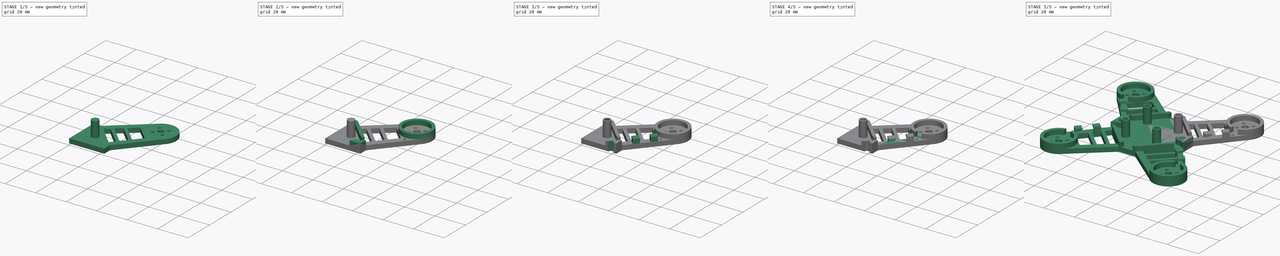
[diagram: build sequence overview — one tinted view per stage of 5, left to right]
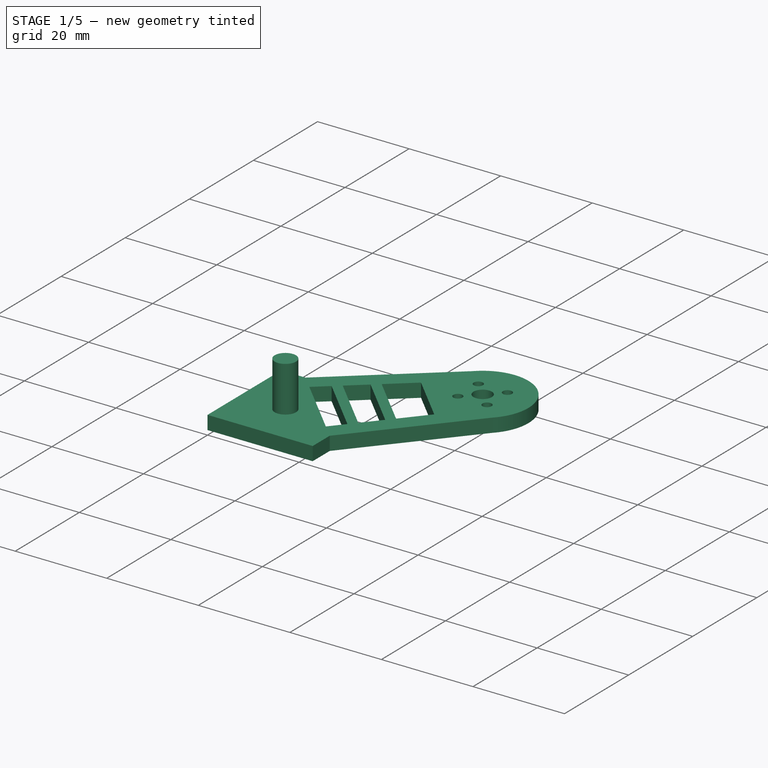
[diagram: stage 1 of 5 — iso view after this stage's code; geometry added in this stage tinted green]
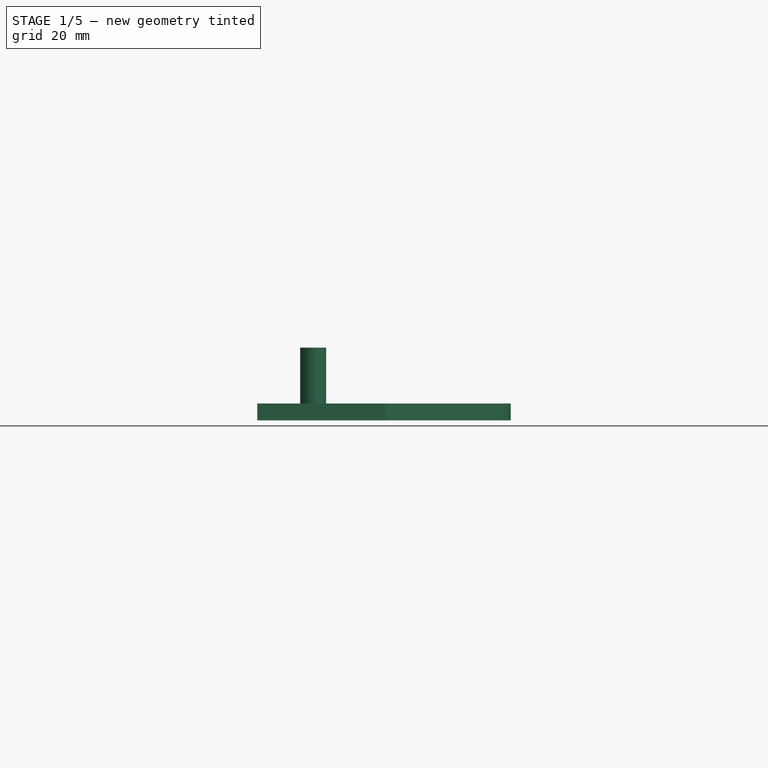
[diagram: stage 1 of 5 — front view after this stage's code; geometry added in this stage tinted green]
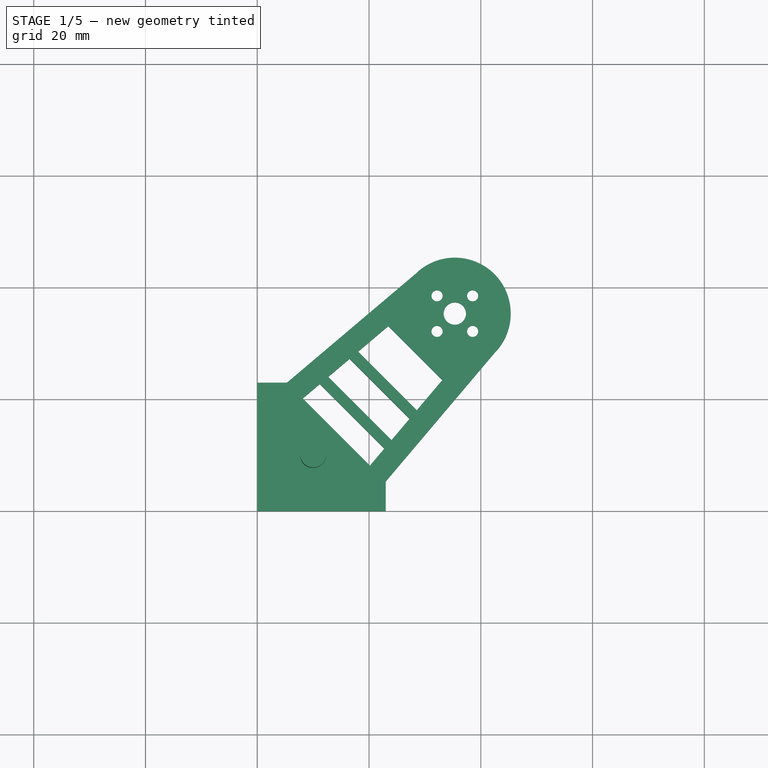
[diagram: stage 1 of 5 — top view after this stage's code; geometry added in this stage tinted green]
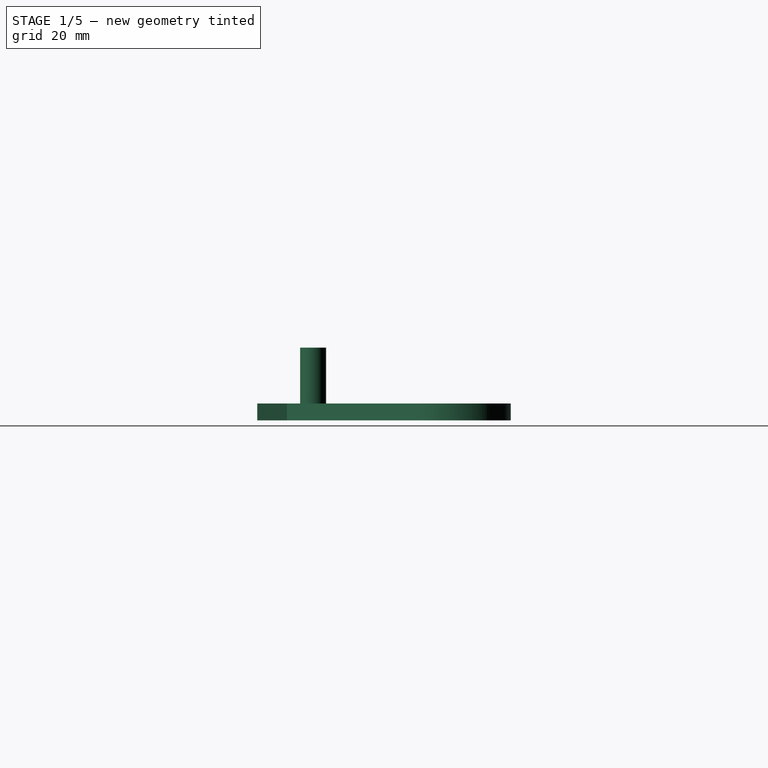
[diagram: stage 1 of 5 — right view after this stage's code; geometry added in this stage tinted green]
FCSTD DOCUMENT  (FreeCAD 0.16R6706 (Git))
Label: darkstar_main_mirrored
License: All rights reserved
LicenseURL: http://en.wikipedia.org/wiki/All_rights_reserved
objects: Sketcher::SketchObject×15, PartDesign::Pocket×9, PartDesign::Pad×5, Part::Mirroring×2, Part::MultiFuse×2
note: 47 computed .brp shape members not serialized (recipe doc carries the construction recipe); baked Part::Feature solids carry a one-line shape summary decoded from their .brp

FEATURE [Sketcher::SketchObject] Sketch  label="template"
  sketch-geometry (4):
    g0: LineSegment [constr] StartX=0 StartY=0 StartZ=0 EndX=35.3553 EndY=35.3553 EndZ=0
    g1: LineSegment [constr] StartX=5.3033 StartY=22.981 StartZ=0 EndX=22.981 EndY=5.3033 EndZ=0
    g2: GeomPoint [constr] X=14.1421 Y=14.1421 Z=0
    g3: LineSegment [constr] StartX=28.2843 StartY=42.4264 StartZ=0 EndX=42.4264 EndY=28.2843 EndZ=0
  constraints (11):
    c: Coincident(g0,g-1)
    c: Distance(g0) = 50
    c: Angle(g-1,g0) = 0.785398
    c: Symmetric(g1,g1,g0)
    c: Distance(g1) = 25
    c: PointOnObject(g2,g0)
    c: Distance(g-1,g2) = 20
    c: PointOnObject(g2,g1)
    c: Symmetric(g3,g3,g0)
    c: PointOnObject(g0,g3)
    c: Distance(g3) = 20
FEATURE [Sketcher::SketchObject] Sketch001  label="main_plate"
  sketch-geometry (11):
    g0: LineSegment [constr] StartX=0 StartY=0 StartZ=0 EndX=35.3553 EndY=35.3553 EndZ=0
    g1: LineSegment [constr] StartX=5.3033 StartY=22.981 StartZ=0 EndX=22.981 EndY=5.3033 EndZ=0
    g2: GeomPoint [constr] X=14.1421 Y=14.1421 Z=0
    g3: LineSegment [constr] StartX=28.2843 StartY=42.4264 StartZ=0 EndX=42.4264 EndY=28.2843 EndZ=0
    g4: LineSegment StartX=28.2843 StartY=42.4264 StartZ=0 EndX=5.3033 EndY=22.981 EndZ=0
    g5: LineSegment StartX=5.3033 StartY=22.981 StartZ=0 EndX=0 EndY=22.981 EndZ=0
    g6: LineSegment StartX=0 StartY=22.981 StartZ=0 EndX=0 EndY=0 EndZ=0
    g7: LineSegment StartX=0 StartY=0 StartZ=0 EndX=22.981 EndY=0 EndZ=0
    g8: LineSegment StartX=22.981 StartY=0 StartZ=0 EndX=22.981 EndY=5.3033 EndZ=0
    g9: LineSegment StartX=22.981 StartY=5.3033 StartZ=0 EndX=42.4264 EndY=28.2843 EndZ=0
    g10: ArcOfCircle CenterX=35.3553 CenterY=35.3553 CenterZ=0 NormalX=0 NormalY=0 NormalZ=1 Radius=10 StartAngle=5.49779 EndAngle=8.63938
  constraints (28):
    c: Coincident(g0,g-1)
    c: Distance(g0) = 50
    c: Angle(g-1,g0) = 0.785398
    c: Symmetric(g1,g1,g0)
    c: Distance(g1) = 25
    c: PointOnObject(g2,g0)
    c: Distance(g-1,g2) = 20
    c: PointOnObject(g2,g1)
    c: Symmetric(g3,g3,g0)
    c: PointOnObject(g0,g3)
    c: Distance(g3) = 20
    c: Coincident(g3,g4)
    c: Coincident(g4,g1)
    c: Coincident(g4,g5)
    c: PointOnObject(g5,g-2)
    c: Coincident(g5,g6)
    c: Coincident(g6,g-1)
    c: Coincident(g6,g7)
    c: PointOnObject(g7,g-1)
    c: Coincident(g7,g8)
    c: Coincident(g8,g1)
    c: Vertical(g8)
    c: Coincident(g8,g9)
    c: Coincident(g9,g3)
    c: Horizontal(g5)
    c: Coincident(g10,g0)
    c: Coincident(g10,g3)
    c: Coincident(g10,g3)
FEATURE [PartDesign::Pad] Pad
  Length = 3
  Length2 = 100
  Sketch = -> Sketch001
  Type = 0
FEATURE [Sketcher::SketchObject] Sketch002  label="motor_holes"
  Placement = pos=(0,0,3) rot=(0,0,1;0rad)
  Support = -> Pad [Face9]
  sketch-geometry (14):
    g0: LineSegment [constr] StartX=0 StartY=0 StartZ=0 EndX=35.3553 EndY=35.3553 EndZ=0
    g1: LineSegment [constr] StartX=5.3033 StartY=22.981 StartZ=0 EndX=22.981 EndY=5.3033 EndZ=0
    g2: GeomPoint [constr] X=14.1421 Y=14.1421 Z=0
    g3: LineSegment [constr] StartX=28.2843 StartY=42.4264 StartZ=0 EndX=42.4264 EndY=28.2843 EndZ=0
    g4: GeomPoint [constr] X=32.1734 Y=32.1734 Z=0
    g5: GeomPoint [constr] X=38.5373 Y=32.1734 Z=0
    g6: GeomPoint [constr] X=38.5373 Y=38.5373 Z=0
    g7: GeomPoint [constr] X=32.1734 Y=38.5373 Z=0
    g8: Circle [constr] CenterX=35.3553 CenterY=35.3553 CenterZ=0 NormalX=0 NormalY=0 NormalZ=1 Radius=4.5
    g9: Circle CenterX=35.3553 CenterY=35.3553 CenterZ=0 NormalX=0 NormalY=0 NormalZ=1 Radius=2
    g10: Circle CenterX=38.5373 CenterY=38.5373 CenterZ=0 NormalX=0 NormalY=0 NormalZ=1 Radius=1
    g11: Circle CenterX=32.1734 CenterY=38.5373 CenterZ=0 NormalX=0 NormalY=0 NormalZ=1 Radius=1
    g12: Circle CenterX=32.1734 CenterY=32.1734 CenterZ=0 NormalX=0 NormalY=0 NormalZ=1 Radius=1
    g13: Circle CenterX=38.5373 CenterY=32.1734 CenterZ=0 NormalX=0 NormalY=0 NormalZ=1 Radius=1
  constraints (31):
    c: Coincident(g0,g-1)
    c: Distance(g0) = 50
    c: Angle(g-1,g0) = 0.785398
    c: Symmetric(g1,g1,g0)
    c: Distance(g1) = 25
    c: PointOnObject(g2,g0)
    c: Distance(g-1,g2) = 20
    c: PointOnObject(g2,g1)
    c: Symmetric(g3,g3,g0)
    c: PointOnObject(g0,g3)
    c: Distance(g3) = 20
    c: PointOnObject(g4,g0)
    c: PointOnObject(g5,g3)
    c: PointOnObject(g7,g3)
    c: Coincident(g8,g0)
    c: PointOnObject(g7,g8)
    c: PointOnObject(g5,g8)
    c: PointOnObject(g4,g8)
    c: PointOnObject(g6,g8)
    c: Symmetric(g6,g4,g0)
    c: Distance(g5,g7) = 9
    c: Coincident(g9,g0)
    c: Coincident(g10,g6)
    c: Coincident(g11,g7)
    c: Coincident(g12,g4)
    c: Coincident(g13,g5)
    c: Radius(g10) = 1
    c: Equal(g10,g11)
    c: Equal(g11,g12)
    c: Equal(g12,g13)
    c: Radius(g9) = 2
FEATURE [PartDesign::Pocket] Pocket
  Length = 3
  Sketch = -> Sketch002
  Type = 0
FEATURE [Sketcher::SketchObject] Sketch003  label="fan_clearance"
  Placement = pos=(0,0,3) rot=(0,0,1;0rad)
  Support = -> Pocket [Face5]
  sketch-geometry (18):
    g0: LineSegment [constr] StartX=0 StartY=0 StartZ=0 EndX=35.3553 EndY=35.3553 EndZ=0
    g1: LineSegment [constr] StartX=5.3033 StartY=22.981 StartZ=0 EndX=22.981 EndY=5.3033 EndZ=0
    g2: GeomPoint [constr] X=14.1421 Y=14.1421 Z=0
    g3: LineSegment [constr] StartX=28.2843 StartY=42.4264 StartZ=0 EndX=42.4264 EndY=28.2843 EndZ=0
    g4: LineSegment [constr] StartX=20.1525 StartY=8.13173 StartZ=0 EndX=39.598 EndY=31.1127 EndZ=0
    g5: LineSegment StartX=20.1525 StartY=8.13173 StartZ=0 EndX=8.13173 EndY=20.1525 EndZ=0
    g6: LineSegment StartX=8.13173 StartY=20.1525 StartZ=0 EndX=11.1853 EndY=22.7363 EndZ=0
    g7: LineSegment StartX=11.1853 StartY=22.7363 StartZ=0 EndX=22.7363 EndY=11.1853 EndZ=0
    g8: LineSegment StartX=22.7363 StartY=11.1853 StartZ=0 EndX=20.1525 EndY=8.13173 EndZ=0
    g9: LineSegment StartX=24.0282 StartY=12.712 StartZ=0 EndX=12.712 EndY=24.0282 EndZ=0
    g10: LineSegment StartX=12.712 StartY=24.0282 StartZ=0 EndX=16.529 EndY=27.2579 EndZ=0
    g11: LineSegment StartX=16.529 StartY=27.2579 StartZ=0 EndX=27.2579 EndY=16.529 EndZ=0
    g12: LineSegment StartX=27.2579 StartY=16.529 StartZ=0 EndX=24.0282 EndY=12.712 EndZ=0
    g13: LineSegment StartX=28.5498 StartY=18.0557 StartZ=0 EndX=18.0557 EndY=28.5498 EndZ=0
    g14: LineSegment StartX=18.0557 StartY=28.5498 StartZ=0 EndX=23.4524 EndY=33.1162 EndZ=0
    g15: LineSegment StartX=23.4524 StartY=33.1162 StartZ=0 EndX=33.1162 EndY=23.4524 EndZ=0
    g16: LineSegment StartX=33.1162 StartY=23.4524 StartZ=0 EndX=28.5498 EndY=18.0557 EndZ=0
    g17: ArcOfCircle [constr] CenterX=35.3553 CenterY=35.3553 CenterZ=0 NormalX=0 NormalY=0 NormalZ=1 Radius=10 StartAngle=2.35619 EndAngle=5.49779
  constraints (47):
    c: Coincident(g0,g-1)
    c: Distance(g0) = 50
    c: Angle(g-1,g0) = 0.785398
    c: Symmetric(g1,g1,g0)
    c: Distance(g1) = 25
    c: PointOnObject(g2,g0)
    c: Distance(g-1,g2) = 20
    c: PointOnObject(g2,g1)
    c: Symmetric(g3,g3,g0)
    c: PointOnObject(g0,g3)
    c: Distance(g3) = 20
    c: PointOnObject(g4,g1)
    c: PointOnObject(g4,g3)
    c: Distance(g4,g1) = 4
    c: Distance(g3,g4) = 4
    c: Coincident(g5,g4)
    c: Coincident(g6,g5)
    c: Coincident(g7,g6)
    c: PointOnObject(g7,g4)
    c: Coincident(g8,g7)
    c: Coincident(g8,g4)
    c: Symmetric(g4,g5,g2)
    c: Symmetric(g7,g6,g0)
    c: Distance(g4,g7) = 4
    c: PointOnObject(g9,g4)
    c: Coincident(g10,g9)
    c: Coincident(g11,g10)
    c: PointOnObject(g11,g4)
    c: Coincident(g12,g11)
    c: Coincident(g12,g9)
    c: Distance(g7,g9) = 2
    c: Distance(g9,g11) = 5
    c: Symmetric(g9,g9,g0)
    c: Symmetric(g11,g10,g0)
    c: PointOnObject(g13,g4)
    c: Coincident(g14,g13)
    c: Coincident(g15,g14)
    c: PointOnObject(g15,g4)
    c: Coincident(g16,g15)
    c: Coincident(g16,g13)
    c: Coincident(g17,g0)
    c: Coincident(g17,g3)
    c: Coincident(g17,g3)
    c: Symmetric(g13,g13,g0)
    c: Distance(g13,g11) = 2
    c: Symmetric(g15,g14,g0)
    c: Tangent(g15,g17)
FEATURE [PartDesign::Pocket] Pocket001
  Length = 3
  Sketch = -> Sketch003
  Type = 0
FEATURE [Sketcher::SketchObject] Sketch005  label="pcb_riser"
  Placement = pos=(0,0,3) rot=(0,0,1;0rad)
  Support = -> Pocket001 [Face5]
  sketch-geometry (7):
    g0: LineSegment [constr] StartX=0 StartY=0 StartZ=0 EndX=35.3553 EndY=35.3553 EndZ=0
    g1: LineSegment [constr] StartX=5.3033 StartY=22.981 StartZ=0 EndX=22.981 EndY=5.3033 EndZ=0
    g2: GeomPoint [constr] X=14.1421 Y=14.1421 Z=0
    g3: LineSegment [constr] StartX=28.2843 StartY=42.4264 StartZ=0 EndX=42.4264 EndY=28.2843 EndZ=0
    g4: GeomPoint [constr] X=10 Y=10 Z=0
    g5: LineSegment [constr] StartX=10 StartY=0 StartZ=0 EndX=10 EndY=10 EndZ=0
    g6: Circle CenterX=10 CenterY=10 CenterZ=0 NormalX=0 NormalY=0 NormalZ=1 Radius=2.33
  constraints (18):
    c: Coincident(g0,g-1)
    c: Distance(g0) = 50
    c: Angle(g-1,g0) = 0.785398
    c: Symmetric(g1,g1,g0)
    c: Distance(g1) = 25
    c: PointOnObject(g2,g0)
    c: Distance(g-1,g2) = 20
    c: PointOnObject(g2,g1)
    c: Symmetric(g3,g3,g0)
    c: PointOnObject(g0,g3)
    c: Distance(g3) = 20
    c: PointOnObject(g4,g0)
    c: PointOnObject(g5,g-1)
    c: Coincident(g5,g4)
    c: Vertical(g5)
    c: Distance(g5) = 10
    c: Coincident(g6,g4)
    c: Radius(g6) = 2.33
FEATURE [PartDesign::Pad] Pad001
  Length = 10
  Length2 = 100
  Sketch = -> Sketch005
  Type = 0
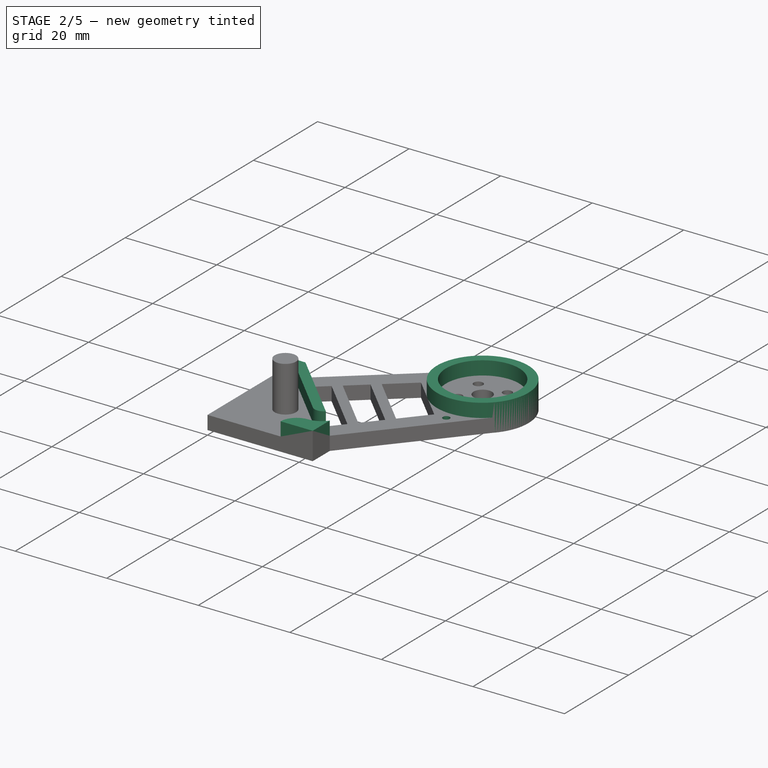
[diagram: stage 2 of 5 — iso view after this stage's code; geometry added in this stage tinted green]
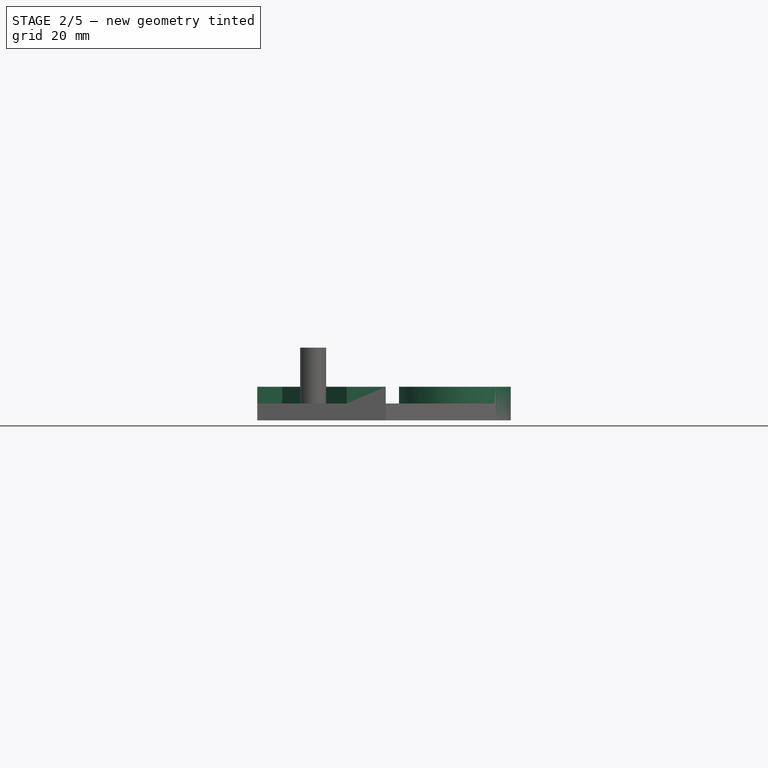
[diagram: stage 2 of 5 — front view after this stage's code; geometry added in this stage tinted green]
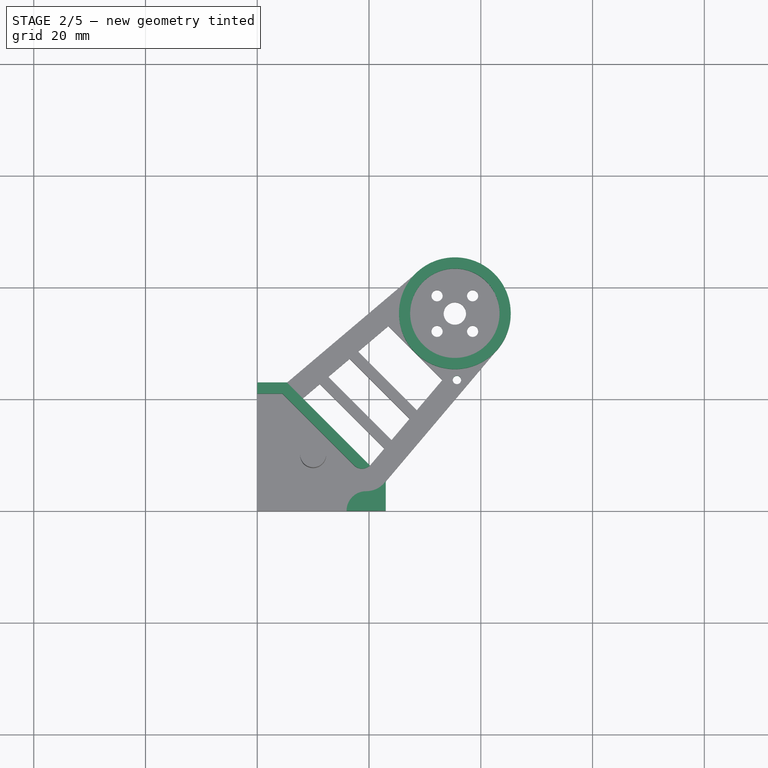
[diagram: stage 2 of 5 — top view after this stage's code; geometry added in this stage tinted green]
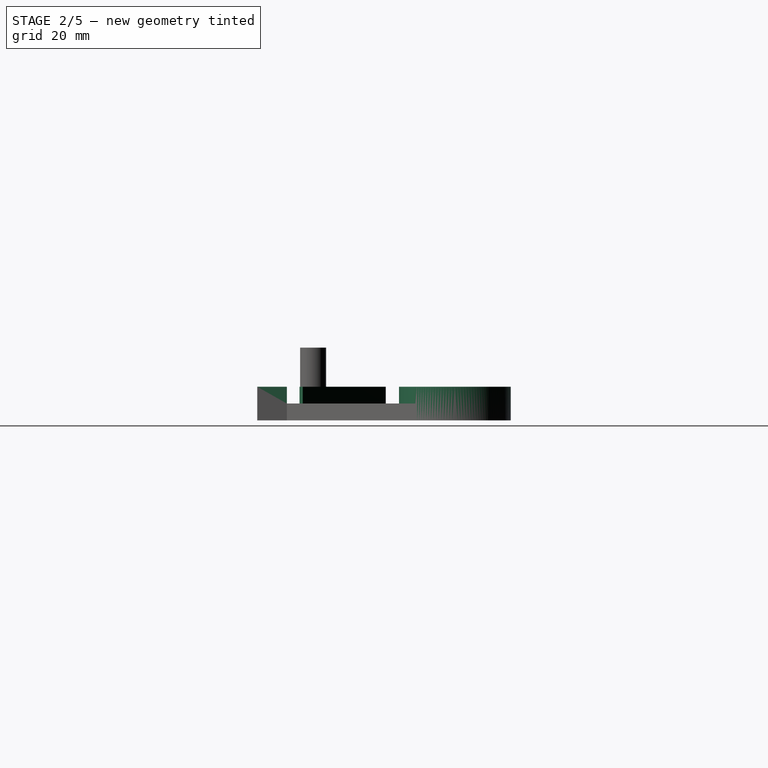
[diagram: stage 2 of 5 — right view after this stage's code; geometry added in this stage tinted green]
FEATURE [Sketcher::SketchObject] Sketch004  label="frame_lip"
  Placement = pos=(0,0,3) rot=(0,0,1;0rad)
  Support = -> Pad001 [Face5]
  sketch-geometry (19):
    g0: LineSegment [constr] StartX=0 StartY=0 StartZ=0 EndX=35.3553 EndY=35.3553 EndZ=0
    g1: LineSegment [constr] StartX=5.3033 StartY=22.981 StartZ=0 EndX=22.981 EndY=5.3033 EndZ=0
    g2: GeomPoint [constr] X=14.1421 Y=14.1421 Z=0
    g3: LineSegment [constr] StartX=28.2843 StartY=42.4264 StartZ=0 EndX=42.4264 EndY=28.2843 EndZ=0
    g4: LineSegment StartX=5.3033 StartY=22.981 StartZ=0 EndX=20.1525 EndY=8.13173 EndZ=0
    g5: LineSegment StartX=5.3033 StartY=22.981 StartZ=0 EndX=0 EndY=22.981 EndZ=0
    g6: LineSegment StartX=0 StartY=22.981 StartZ=0 EndX=0 EndY=20.981 EndZ=0
    g7: LineSegment StartX=0 StartY=20.981 StartZ=0 EndX=4.47487 EndY=20.981 EndZ=0
    g8: LineSegment StartX=17.3241 StartY=8.13173 StartZ=0 EndX=4.47487 EndY=20.981 EndZ=0
    g9: LineSegment [constr] StartX=18.7383 StartY=9.54594 StartZ=0 EndX=17.3241 EndY=8.13173 EndZ=0
    g10: ArcOfCircle CenterX=18.7383 CenterY=9.54594 CenterZ=0 NormalX=0 NormalY=0 NormalZ=1 Radius=2 StartAngle=3.92699 EndAngle=5.49779
    g11: LineSegment StartX=22.981 StartY=5.3033 StartZ=0 EndX=22.981 EndY=0 EndZ=0
    g12: LineSegment StartX=22.981 StartY=0 StartZ=0 EndX=20.981 EndY=0 EndZ=0
    g13: LineSegment StartX=20.981 StartY=0 StartZ=0 EndX=17.981 EndY=0 EndZ=0
    g14: LineSegment StartX=17.981 StartY=0 StartZ=0 EndX=15.981 EndY=-1e-12 EndZ=0
    g15: ArcOfCircle [constr] CenterX=19.481 CenterY=0 CenterZ=0 NormalX=0 NormalY=0 NormalZ=1 Radius=1.5 StartAngle=0 EndAngle=3.14159
    g16: ArcOfCircle CenterX=19.481 CenterY=0 CenterZ=0 NormalX=0 NormalY=0 NormalZ=1 Radius=3.5 StartAngle=1.5708 EndAngle=3.14159
    g17: LineSegment [constr] StartX=19.481 StartY=0 StartZ=0 EndX=19.481 EndY=3.5 EndZ=0
    g18: ArcOfCircle CenterX=19.481 CenterY=7.79817 CenterZ=0 NormalX=0 NormalY=0 NormalZ=1 Radius=4.29817 StartAngle=4.71239 EndAngle=5.66391
  constraints (54):
    c: Coincident(g0,g-1)
    c: Distance(g0) = 50
    c: Angle(g-1,g0) = 0.785398
    c: Symmetric(g1,g1,g0)
    c: Distance(g1) = 25
    c: PointOnObject(g2,g0)
    c: Distance(g-1,g2) = 20
    c: PointOnObject(g2,g1)
    c: Symmetric(g3,g3,g0)
    c: PointOnObject(g0,g3)
    c: Distance(g3) = 20
    c: Coincident(g4,g1)
    c: PointOnObject(g4,g1)
    c: Distance(g4,g1) = 4
    c: Coincident(g5,g1)
    c: PointOnObject(g5,g-2)
    c: Horizontal(g5)
    c: Coincident(g6,g5)
    c: PointOnObject(g6,g-2)
    c: Distance(g6) = 2
    c: Coincident(g7,g6)
    c: Parallel(g7,g5)
    c: Coincident(g8,g7)
    c: Parallel(g4,g8)
    c: PointOnObject(g9,g1)
    c: Coincident(g9,g8)
    c: Perpendicular(g1,g9)
    c: Equal(g9,g6)
    c: Coincident(g10,g8)
    c: Coincident(g10,g4)
    c: Coincident(g10,g9)
    c: Coincident(g11,g1)
    c: PointOnObject(g11,g-1)
    c: Vertical(g11)
    c: Coincident(g12,g11)
    c: Coincident(g13,g12)
    c: Coincident(g14,g13)
    c: Equal(g12,g14)
    c: Equal(g14,g6)
    c: PointOnObject(g15,g13)
    c: Coincident(g15,g13)
    c: Coincident(g15,g12)
    c: PointOnObject(g12,g-1)
    c: PointOnObject(g13,g-1)
    c: PointOnObject(g14,g-1)
    c: Distance(g13,g12) = 3
    c: Coincident(g16,g15)
    c: Coincident(g16,g14)
    c: Coincident(g17,g15)
    c: Coincident(g17,g16)
    c: Symmetric(g12,g13,g17)
    c: Coincident(g18,g16)
    c: Coincident(g18,g1)
    c: Tangent(g18,g16)
FEATURE [PartDesign::Pad] Pad002
  Length = 3
  Length2 = 100
  Sketch = -> Sketch004
  Type = 0
FEATURE [Sketcher::SketchObject] Sketch009  label="motor_sleeve"
  Placement = pos=(0,0,3) rot=(0,0,1;0rad)
  Support = -> Pad002 [Face5]
  sketch-geometry (7):
    g0: LineSegment [constr] StartX=0 StartY=0 StartZ=0 EndX=35.3553 EndY=35.3553 EndZ=0
    g1: LineSegment [constr] StartX=5.3033 StartY=22.981 StartZ=0 EndX=22.981 EndY=5.3033 EndZ=0
    g2: GeomPoint [constr] X=14.1421 Y=14.1421 Z=0
    g3: LineSegment [constr] StartX=28.2843 StartY=42.4264 StartZ=0 EndX=42.4264 EndY=28.2843 EndZ=0
    g4: Circle CenterX=35.3553 CenterY=35.3553 CenterZ=0 NormalX=0 NormalY=0 NormalZ=1 Radius=10
    g5: Circle CenterX=35.3553 CenterY=35.3553 CenterZ=0 NormalX=0 NormalY=0 NormalZ=1 Radius=8
    g6: GeomPoint [constr] X=41.0122 Y=29.6985 Z=0
  constraints (17):
    c: Coincident(g0,g-1)
    c: Distance(g0) = 50
    c: Angle(g-1,g0) = 0.785398
    c: Symmetric(g1,g1,g0)
    c: Distance(g1) = 25
    c: PointOnObject(g2,g0)
    c: Distance(g-1,g2) = 20
    c: PointOnObject(g2,g1)
    c: Symmetric(g3,g3,g0)
    c: PointOnObject(g0,g3)
    c: Distance(g3) = 20
    c: Coincident(g4,g0)
    c: PointOnObject(g3,g4)
    c: Coincident(g5,g0)
    c: PointOnObject(g6,g3)
    c: Distance(g6,g3) = 2
    c: PointOnObject(g6,g5)
FEATURE [PartDesign::Pad] Pad003
  Length = 3
  Length2 = 100
  Sketch = -> Sketch009
  Type = 0
FEATURE [Sketcher::SketchObject] Sketch011  label="rc_antenna_hole"
  Placement = pos=(0,0,3) rot=(0,0,1;0rad)
  Support = -> Pad003 [Face4]
  sketch-geometry (7):
    g0: LineSegment [constr] StartX=0 StartY=0 StartZ=0 EndX=35.3553 EndY=35.3553 EndZ=0
    g1: LineSegment [constr] StartX=5.3033 StartY=22.981 StartZ=0 EndX=22.981 EndY=5.3033 EndZ=0
    g2: GeomPoint [constr] X=14.1421 Y=14.1421 Z=0
    g3: LineSegment [constr] StartX=28.2843 StartY=42.4264 StartZ=0 EndX=42.4264 EndY=28.2843 EndZ=0
    g4: LineSegment [constr] StartX=42.4264 StartY=28.2843 StartZ=0 EndX=22.981 EndY=5.3033 EndZ=0
    g5: LineSegment [constr] StartX=37.2589 StartY=22.1772 StartZ=0 EndX=35.7321 EndY=23.4691 EndZ=0
    g6: Circle CenterX=35.7321 CenterY=23.4691 CenterZ=0 NormalX=0 NormalY=0 NormalZ=1 Radius=0.75
  constraints (19):
    c: Coincident(g0,g-1)
    c: Distance(g0) = 50
    c: Angle(g-1,g0) = 0.785398
    c: Symmetric(g1,g1,g0)
    c: Distance(g1) = 25
    c: PointOnObject(g2,g0)
    c: Distance(g-1,g2) = 20
    c: PointOnObject(g2,g1)
    c: Symmetric(g3,g3,g0)
    c: PointOnObject(g0,g3)
    c: Distance(g3) = 20
    c: Coincident(g4,g3)
    c: Coincident(g4,g1)
    c: PointOnObject(g5,g4)
    c: Distance(g5) = 2
    c: Perpendicular(g4,g5)
    c: Distance(g5,g3) = 8
    c: Coincident(g6,g5)
    c: Radius(g6) = 0.75
FEATURE [PartDesign::Pocket] Pocket002
  Length = 3
  Sketch = -> Sketch011
  Type = 0
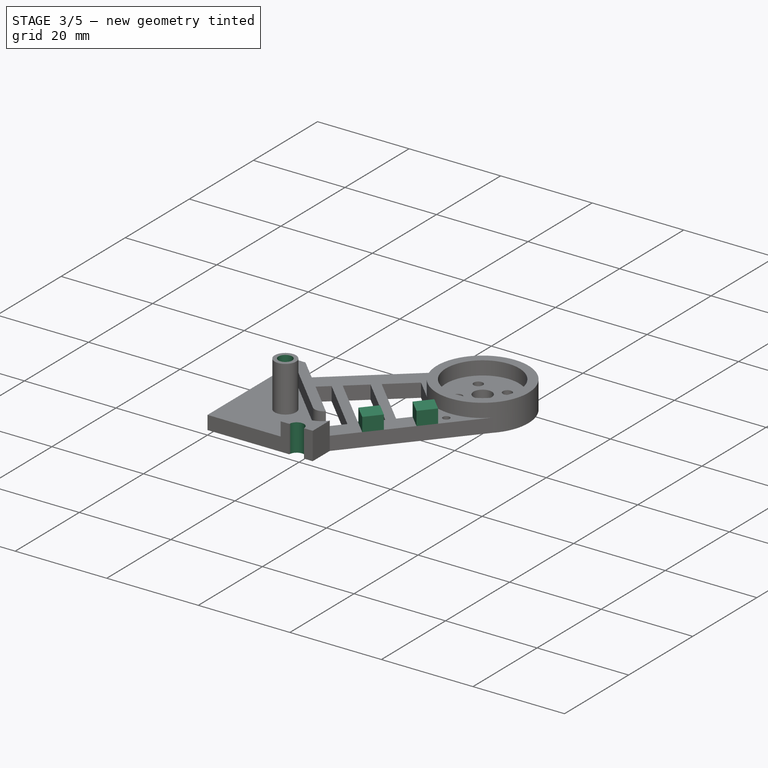
[diagram: stage 3 of 5 — iso view after this stage's code; geometry added in this stage tinted green]
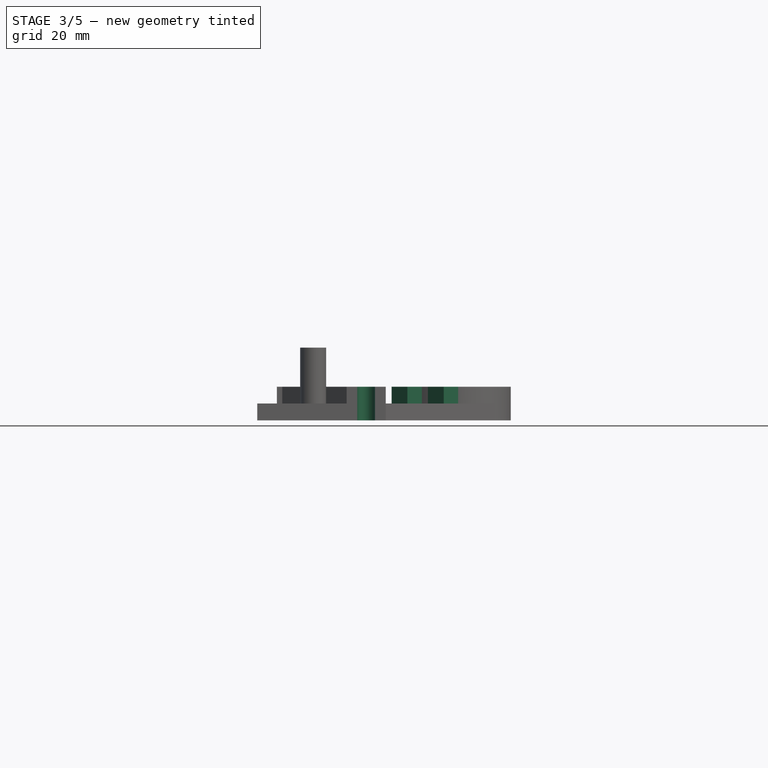
[diagram: stage 3 of 5 — front view after this stage's code; geometry added in this stage tinted green]
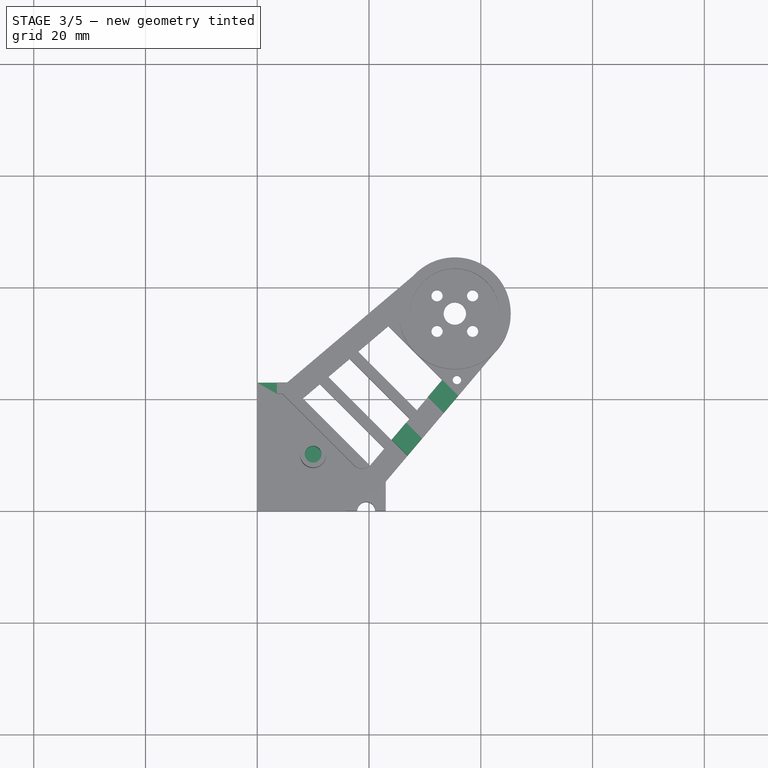
[diagram: stage 3 of 5 — top view after this stage's code; geometry added in this stage tinted green]
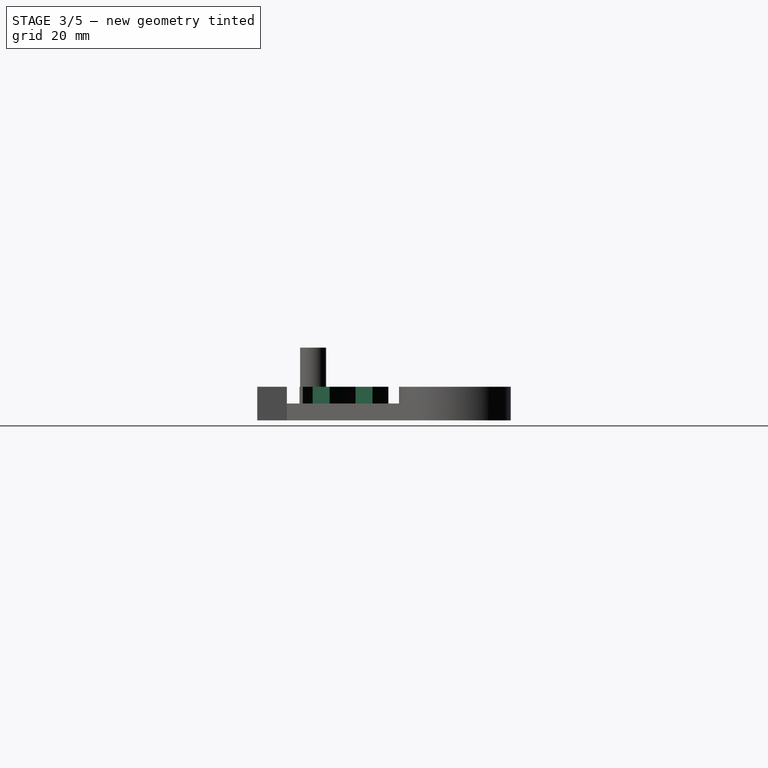
[diagram: stage 3 of 5 — right view after this stage's code; geometry added in this stage tinted green]
FEATURE [Sketcher::SketchObject] Sketch006  label="motor_wire_clips"
  Placement = pos=(0,0,3) rot=(0,0,1;0rad)
  Support = -> Pocket002 [Face4]
  sketch-geometry (17):
    g0: LineSegment [constr] StartX=0 StartY=0 StartZ=0 EndX=35.3553 EndY=35.3553 EndZ=0
    g1: LineSegment [constr] StartX=5.3033 StartY=22.981 StartZ=0 EndX=22.981 EndY=5.3033 EndZ=0
    g2: GeomPoint [constr] X=14.1421 Y=14.1421 Z=0
    g3: LineSegment [constr] StartX=28.2843 StartY=42.4264 StartZ=0 EndX=42.4264 EndY=28.2843 EndZ=0
    g4: LineSegment [constr] StartX=22.981 StartY=5.3033 StartZ=0 EndX=42.4264 EndY=28.2843 EndZ=0
    g5: LineSegment [constr] StartX=18.3848 StartY=18.3848 StartZ=0 EndX=26.8701 EndY=9.89949 EndZ=0
    g6: LineSegment [constr] StartX=28.2843 StartY=28.2843 StartZ=0 EndX=35.9446 EndY=20.6239 EndZ=0
    g7: ArcOfCircle [constr] CenterX=35.3553 CenterY=35.3553 CenterZ=0 NormalX=0 NormalY=0 NormalZ=1 Radius=10 StartAngle=2.35619 EndAngle=5.49779
    g8: GeomPoint [constr] X=24.0416 Y=12.7279 Z=0
    g9: LineSegment StartX=35.9446 StartY=20.6239 StartZ=0 EndX=33.3608 EndY=17.5704 EndZ=0
    g10: LineSegment StartX=33.3608 StartY=17.5704 StartZ=0 EndX=30.5324 EndY=20.3988 EndZ=0
    g11: LineSegment StartX=30.5324 StartY=20.3988 StartZ=0 EndX=33.1162 EndY=23.4524 EndZ=0
    g12: LineSegment StartX=33.1162 StartY=23.4524 StartZ=0 EndX=35.9446 EndY=20.6239 EndZ=0
    g13: LineSegment StartX=24.0416 StartY=12.7279 StartZ=0 EndX=26.8701 EndY=9.89949 EndZ=0
    g14: LineSegment StartX=26.8701 StartY=9.89949 StartZ=0 EndX=29.4538 EndY=12.953 EndZ=0
    g15: LineSegment StartX=29.4538 StartY=12.953 StartZ=0 EndX=26.6254 EndY=15.7815 EndZ=0
    g16: LineSegment StartX=26.6254 StartY=15.7815 StartZ=0 EndX=24.0416 EndY=12.7279 EndZ=0
  constraints (48):
    c: Coincident(g0,g-1)
    c: Distance(g0) = 50
    c: Angle(g-1,g0) = 0.785398
    c: Symmetric(g1,g1,g0)
    c: Distance(g1) = 25
    c: PointOnObject(g2,g0)
    c: Distance(g-1,g2) = 20
    c: PointOnObject(g2,g1)
    c: Symmetric(g3,g3,g0)
    c: PointOnObject(g0,g3)
    c: Distance(g3) = 20
    c: Coincident(g4,g1)
    c: Coincident(g4,g3)
    c: PointOnObject(g5,g0)
    c: PointOnObject(g5,g4)
    c: PointOnObject(g6,g0)
    c: PointOnObject(g6,g4)
    c: Parallel(g1,g5)
    c: Parallel(g1,g6)
    c: Distance(g5,g2) = 6
    c: Coincident(g7,g0)
    c: Coincident(g7,g3)
    c: Coincident(g7,g3)
    c: PointOnObject(g6,g7)
    c: PointOnObject(g8,g5)
    c: Distance(g5,g8) = 4
    c: Coincident(g6,g9)
    c: Coincident(g9,g10)
    c: Coincident(g10,g11)
    c: Coincident(g11,g12)
    c: Coincident(g12,g9)
    c: Coincident(g13,g8)
    c: Coincident(g13,g14)
    c: Coincident(g14,g15)
    c: Coincident(g15,g16)
    c: Coincident(g16,g13)
    c: Distance(g9) = 4
    c: Equal(g9,g10)
    c: Equal(g10,g11)
    c: Equal(g11,g12)
    c: Equal(g12,g15)
    c: Equal(g15,g16)
    c: Equal(g16,g14)
    c: Equal(g14,g13)
    c: PointOnObject(g13,g5)
    c: PointOnObject(g9,g4)
    c: PointOnObject(g11,g6)
    c: Parallel(g14,g4)
FEATURE [PartDesign::Pad] Pad004
  Length = 3
  Length2 = 100
  Sketch = -> Sketch006
  Type = 0
FEATURE [Sketcher::SketchObject] Sketch007  label="pcb_riser_hole"
  Placement = pos=(0,0,13) rot=(0,0,1;0rad)
  Support = -> Pad004 [Face43]
  sketch-geometry (6):
    g0: LineSegment [constr] StartX=0 StartY=0 StartZ=0 EndX=35.3553 EndY=35.3553 EndZ=0
    g1: LineSegment [constr] StartX=5.3033 StartY=22.981 StartZ=0 EndX=22.981 EndY=5.3033 EndZ=0
    g2: GeomPoint [constr] X=14.1421 Y=14.1421 Z=0
    g3: LineSegment [constr] StartX=28.2843 StartY=42.4264 StartZ=0 EndX=42.4264 EndY=28.2843 EndZ=0
    g4: LineSegment [constr] StartX=10 StartY=10 StartZ=0 EndX=10 EndY=0 EndZ=0
    g5: Circle CenterX=10 CenterY=10 CenterZ=0 NormalX=0 NormalY=0 NormalZ=1 Radius=1.5
  constraints (17):
    c: Coincident(g0,g-1)
    c: Distance(g0) = 50
    c: Angle(g-1,g0) = 0.785398
    c: Symmetric(g1,g1,g0)
    c: Distance(g1) = 25
    c: PointOnObject(g2,g0)
    c: Distance(g-1,g2) = 20
    c: PointOnObject(g2,g1)
    c: Symmetric(g3,g3,g0)
    c: PointOnObject(g0,g3)
    c: Distance(g3) = 20
    c: PointOnObject(g4,g0)
    c: PointOnObject(g4,g-1)
    c: Vertical(g4)
    c: Distance(g4) = 10
    c: Coincident(g5,g4)
    c: Radius(g5) = 1.5
FEATURE [PartDesign::Pocket] Pocket003
  Length = 7
  Sketch = -> Sketch007
  Type = 0
FEATURE [Sketcher::SketchObject] Sketch008  label="main_bolt_hole"
  Placement = pos=(0,0,6) rot=(0,0,1;0rad)
  Support = -> Pocket003 [Face5]
  sketch-geometry (8):
    g0: LineSegment [constr] StartX=0 StartY=0 StartZ=0 EndX=35.3553 EndY=35.3553 EndZ=0
    g1: LineSegment [constr] StartX=5.3033 StartY=22.981 StartZ=0 EndX=22.981 EndY=5.3033 EndZ=0
    g2: GeomPoint [constr] X=14.1421 Y=14.1421 Z=0
    g3: LineSegment [constr] StartX=28.2843 StartY=42.4264 StartZ=0 EndX=42.4264 EndY=28.2843 EndZ=0
    g4: LineSegment [constr] StartX=22.981 StartY=5.3033 StartZ=0 EndX=22.981 EndY=0 EndZ=0
    g5: ArcOfCircle CenterX=19.481 CenterY=0 CenterZ=0 NormalX=0 NormalY=0 NormalZ=1 Radius=1.6 StartAngle=0 EndAngle=3.14159
    g6: LineSegment [constr] StartX=22.981 StartY=0 StartZ=0 EndX=19.481 EndY=0 EndZ=0
    g7: LineSegment StartX=21.081 StartY=0 StartZ=0 EndX=17.881 EndY=0 EndZ=0
  constraints (23):
    c: Coincident(g0,g-1)
    c: Distance(g0) = 50
    c: Angle(g-1,g0) = 0.785398
    c: Symmetric(g1,g1,g0)
    c: Distance(g1) = 25
    c: PointOnObject(g2,g0)
    c: Distance(g-1,g2) = 20
    c: PointOnObject(g2,g1)
    c: Symmetric(g3,g3,g0)
    c: PointOnObject(g0,g3)
    c: Distance(g3) = 20
    c: Coincident(g4,g1)
    c: PointOnObject(g4,g-1)
    c: Vertical(g4)
    c: Coincident(g6,g4)
    c: Distance(g6) = 3.5
    c: PointOnObject(g6,g-1)
    c: Coincident(g5,g6)
    c: PointOnObject(g5,g6)
    c: Symmetric(g5,g5,g5)
    c: Radius(g5) = 1.6
    c: Coincident(g7,g5)
    c: Coincident(g7,g5)
FEATURE [PartDesign::Pocket] Pocket004
  Length = 6
  Sketch = -> Sketch008
  Type = 0
FEATURE [Sketcher::SketchObject] Sketch014  label="power_plug_pocket"
  Placement = pos=(0,0,6) rot=(0,0,1;0rad)
  Support = -> Pocket004 [Face42]
  sketch-geometry (9):
    g0: LineSegment [constr] StartX=0 StartY=0 StartZ=0 EndX=35.3553 EndY=35.3553 EndZ=0
    g1: LineSegment [constr] StartX=5.3033 StartY=22.981 StartZ=0 EndX=22.981 EndY=5.3033 EndZ=0
    g2: GeomPoint [constr] X=14.1421 Y=14.1421 Z=0
    g3: LineSegment [constr] StartX=28.2843 StartY=42.4264 StartZ=0 EndX=42.4264 EndY=28.2843 EndZ=0
    g4: LineSegment StartX=0 StartY=22.981 StartZ=0 EndX=0 EndY=20.981 EndZ=0
    g5: LineSegment StartX=0 StartY=20.981 StartZ=0 EndX=3.5 EndY=20.981 EndZ=0
    g6: LineSegment StartX=3.5 StartY=20.981 StartZ=0 EndX=3.5 EndY=22.981 EndZ=0
    g7: LineSegment StartX=3.5 StartY=22.981 StartZ=0 EndX=0 EndY=22.981 EndZ=0
    g8: LineSegment [constr] StartX=5.3033 StartY=22.981 StartZ=0 EndX=0 EndY=22.981 EndZ=0
  constraints (25):
    c: Coincident(g0,g-1)
    c: Distance(g0) = 50
    c: Angle(g-1,g0) = 0.785398
    c: Symmetric(g1,g1,g0)
    c: Distance(g1) = 25
    c: PointOnObject(g2,g0)
    c: Distance(g-1,g2) = 20
    c: PointOnObject(g2,g1)
    c: Symmetric(g3,g3,g0)
    c: PointOnObject(g0,g3)
    c: Distance(g3) = 20
    c: Coincident(g4,g5)
    c: Coincident(g5,g6)
    c: Coincident(g6,g7)
    c: Coincident(g7,g4)
    c: Horizontal(g7)
    c: Horizontal(g5)
    c: Vertical(g4)
    c: Vertical(g6)
    c: Coincident(g8,g1)
    c: PointOnObject(g8,g-2)
    c: Horizontal(g8)
    c: Coincident(g4,g8)
    c: Distance(g5) = 3.5
    c: Distance(g6) = 2
FEATURE [PartDesign::Pocket] Pocket005
  Length = 3
  Sketch = -> Sketch014
  Type = 0
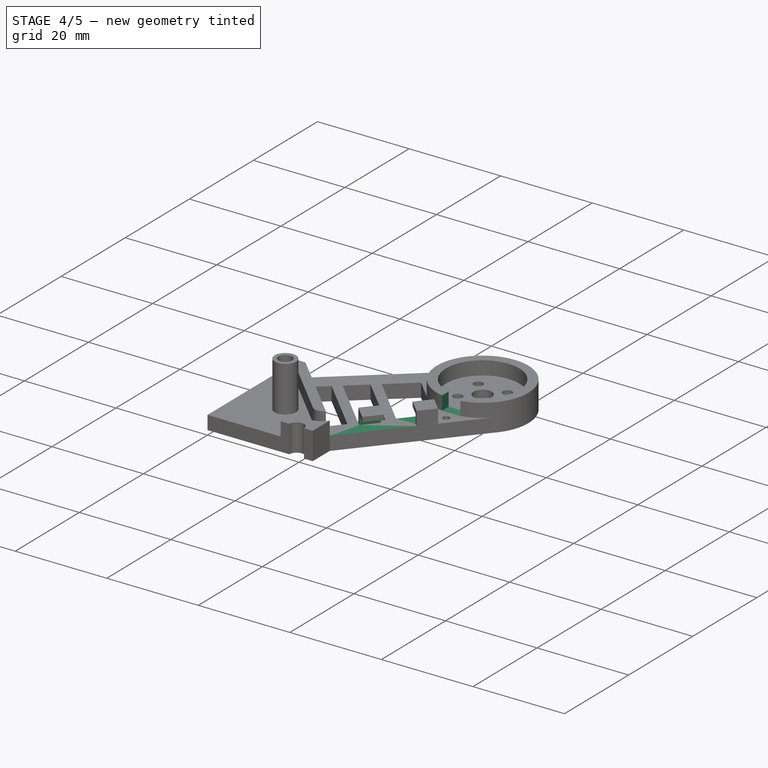
[diagram: stage 4 of 5 — iso view after this stage's code; geometry added in this stage tinted green]
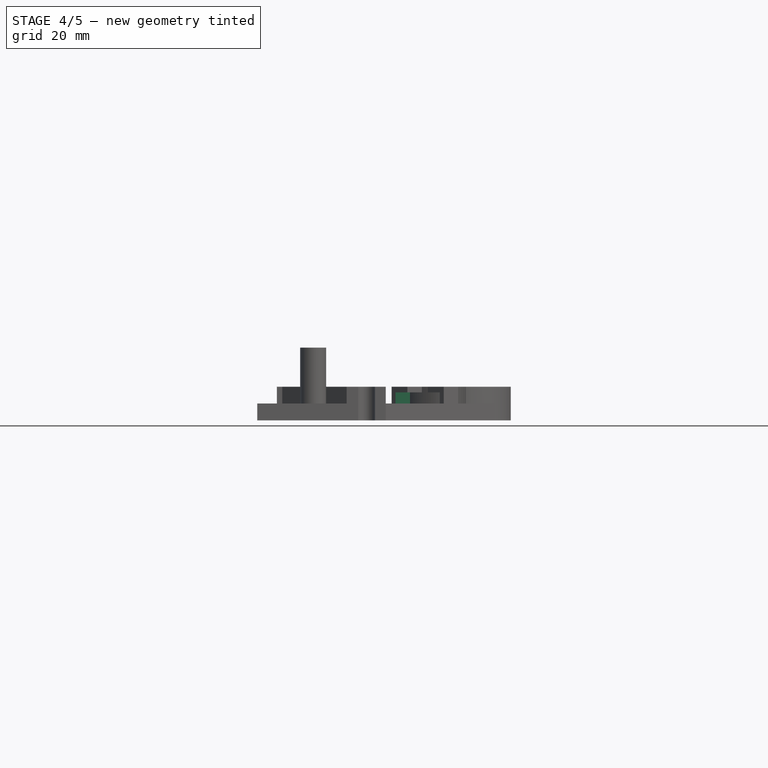
[diagram: stage 4 of 5 — front view after this stage's code; geometry added in this stage tinted green]
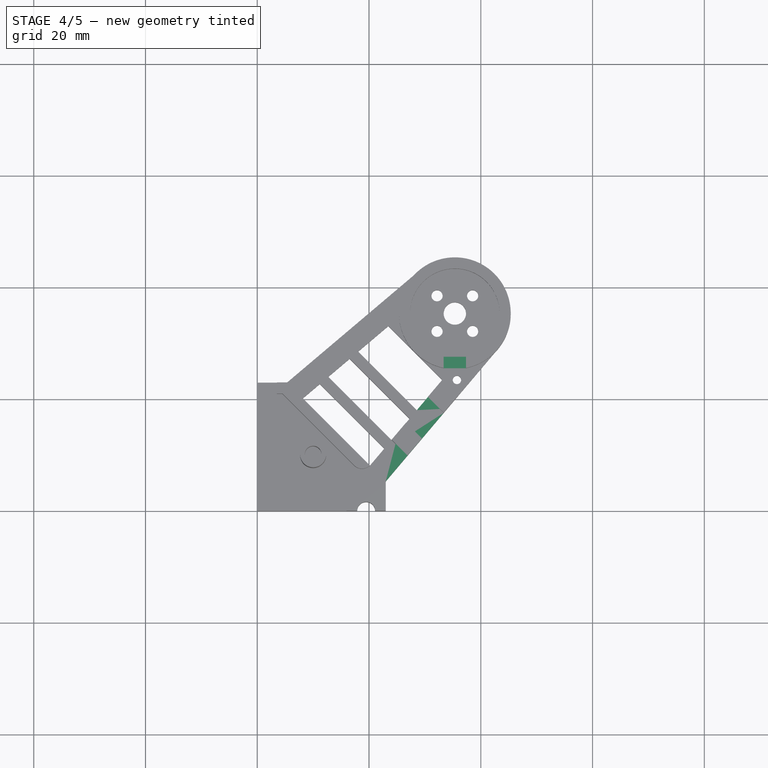
[diagram: stage 4 of 5 — top view after this stage's code; geometry added in this stage tinted green]
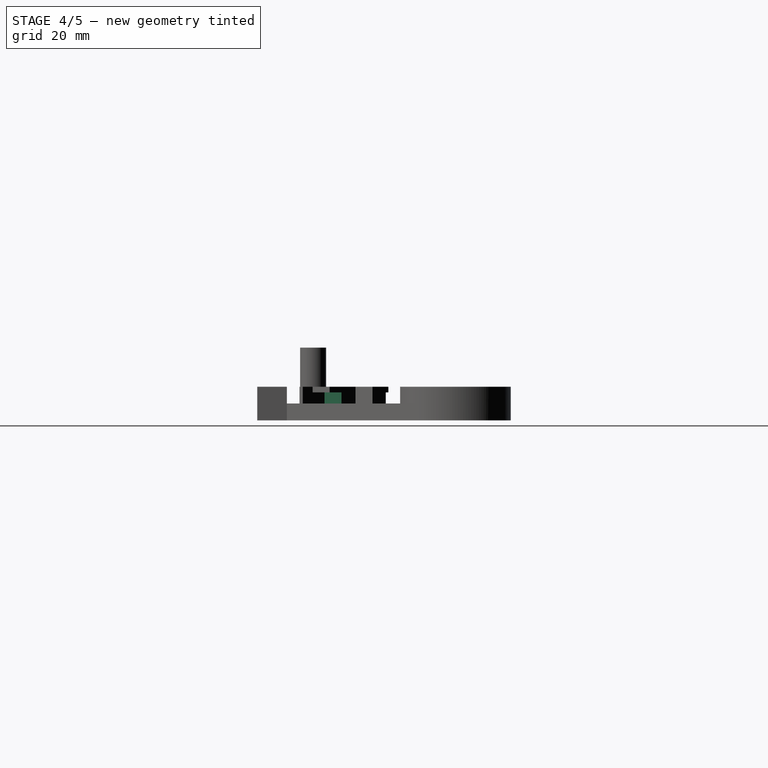
[diagram: stage 4 of 5 — right view after this stage's code; geometry added in this stage tinted green]
FEATURE [Sketcher::SketchObject] Sketch010  label="motor_sleeve_pocket"
  Placement = pos=(0,0,6) rot=(0,0,1;0rad)
  Support = -> Pocket005 [Face39]
  sketch-geometry (10):
    g0: LineSegment [constr] StartX=0 StartY=0 StartZ=0 EndX=35.3553 EndY=35.3553 EndZ=0
    g1: LineSegment [constr] StartX=5.3033 StartY=22.981 StartZ=0 EndX=22.981 EndY=5.3033 EndZ=0
    g2: GeomPoint [constr] X=14.1421 Y=14.1421 Z=0
    g3: LineSegment [constr] StartX=28.2843 StartY=42.4264 StartZ=0 EndX=42.4264 EndY=28.2843 EndZ=0
    g4: LineSegment [constr] StartX=35.3553 StartY=45.3553 StartZ=0 EndX=35.3553 EndY=25.3553 EndZ=0
    g5: GeomPoint [constr] X=35.3553 Y=27.3553 Z=0
    g6: ArcOfCircle CenterX=35.3553 CenterY=35.3553 CenterZ=0 NormalX=0 NormalY=0 NormalZ=1 Radius=8 StartAngle=4.45971 EndAngle=4.96507
    g7: ArcOfCircle CenterX=35.3553 CenterY=35.3553 CenterZ=0 NormalX=0 NormalY=0 NormalZ=1 Radius=10 StartAngle=4.51103 EndAngle=4.91375
    g8: LineSegment StartX=37.3553 StartY=27.6094 StartZ=0 EndX=37.3553 EndY=25.5574 EndZ=0
    g9: LineSegment StartX=33.3553 StartY=27.6094 StartZ=0 EndX=33.3553 EndY=25.5574 EndZ=0
  constraints (28):
    c: Coincident(g0,g-1)
    c: Distance(g0) = 50
    c: Angle(g-1,g0) = 0.785398
    c: Symmetric(g1,g1,g0)
    c: Distance(g1) = 25
    c: PointOnObject(g2,g0)
    c: Distance(g-1,g2) = 20
    c: PointOnObject(g2,g1)
    c: Symmetric(g3,g3,g0)
    c: PointOnObject(g0,g3)
    c: Distance(g3) = 20
    c: Symmetric(g4,g4,g0)
    c: Vertical(g4)
    c: Equal(g4,g3)
    c: PointOnObject(g5,g4)
    c: Distance(g5,g4) = 2
    c: Coincident(g6,g0)
    c: Coincident(g7,g0)
    c: Coincident(g8,g6)
    c: Coincident(g8,g7)
    c: Coincident(g9,g7)
    c: Parallel(g8,g9)
    c: Parallel(g9,g4)
    c: Coincident(g6,g9)
    c: PointOnObject(g4,g7)
    c: PointOnObject(g5,g6)
    c: Symmetric(g6,g6,g4)
    c: Distance(g7,g7) = 4
FEATURE [PartDesign::Pocket] Pocket006
  Length = 3
  Sketch = -> Sketch010
  Type = 0
FEATURE [Sketcher::SketchObject] Sketch013  label="motor_wire_clip_pocket_inner"
  Placement = pos=(10.7773,-9.11924,2e-12) rot=(0.836178,0.387818,0.387818;1.74876rad)
  Support = -> Pocket006 [Face3]
  sketch-geometry (4):
    g0: LineSegment StartX=30 StartY=3 StartZ=0 EndX=24 EndY=3 EndZ=0
    g1: LineSegment StartX=24 StartY=3 StartZ=0 EndX=24 EndY=5 EndZ=0
    g2: LineSegment StartX=24 StartY=5 StartZ=0 EndX=30 EndY=5 EndZ=0
    g3: LineSegment StartX=30 StartY=5 StartZ=0 EndX=30 EndY=3 EndZ=0
  constraints (12):
    c: Coincident(g0,g1)
    c: Coincident(g1,g2)
    c: Coincident(g2,g3)
    c: Coincident(g3,g0)
    c: Vertical(g3)
    c: Vertical(g1)
    c: Horizontal(g2)
    c: Horizontal(g0)
    c: DistanceY(g0) = 3
    c: DistanceX(g0) = 24
    c: Distance(g0) = 6
    c: Distance(g3) = 2
FEATURE [PartDesign::Pocket] Pocket007
  Length = 3
  Sketch = -> Sketch013
  Type = 0
FEATURE [Sketcher::SketchObject] Sketch012  label="motor_wire_clip_pocket_outer"
  Placement = pos=(7.73429,-6.5444,0) rot=(-0.311625,0.671897,0.671897;3.74577rad)
  Support = -> Pocket007 [Face25]
  sketch-geometry (4):
    g0: LineSegment StartX=-35 StartY=3 StartZ=0 EndX=-39.5 EndY=3 EndZ=0
    g1: LineSegment StartX=-39.5 StartY=3 StartZ=0 EndX=-39.5 EndY=5 EndZ=0
    g2: LineSegment StartX=-39.5 StartY=5 StartZ=0 EndX=-35 EndY=5 EndZ=0
    g3: LineSegment StartX=-35 StartY=5 StartZ=0 EndX=-35 EndY=3 EndZ=0
  constraints (12):
    c: Coincident(g1,g0)
    c: Coincident(g2,g1)
    c: Coincident(g3,g2)
    c: Coincident(g3,g0)
    c: DistanceY(g0) = 3
    c: DistanceX(g0) = -35
    c: Horizontal(g0)
    c: Distance(g0) = 4.5
    c: Horizontal(g2)
    c: Vertical(g1)
    c: Vertical(g3)
    c: Distance(g3) = 2
FEATURE [PartDesign::Pocket] Pocket008
  Length = 3
  Sketch = -> Sketch012
  Type = 0
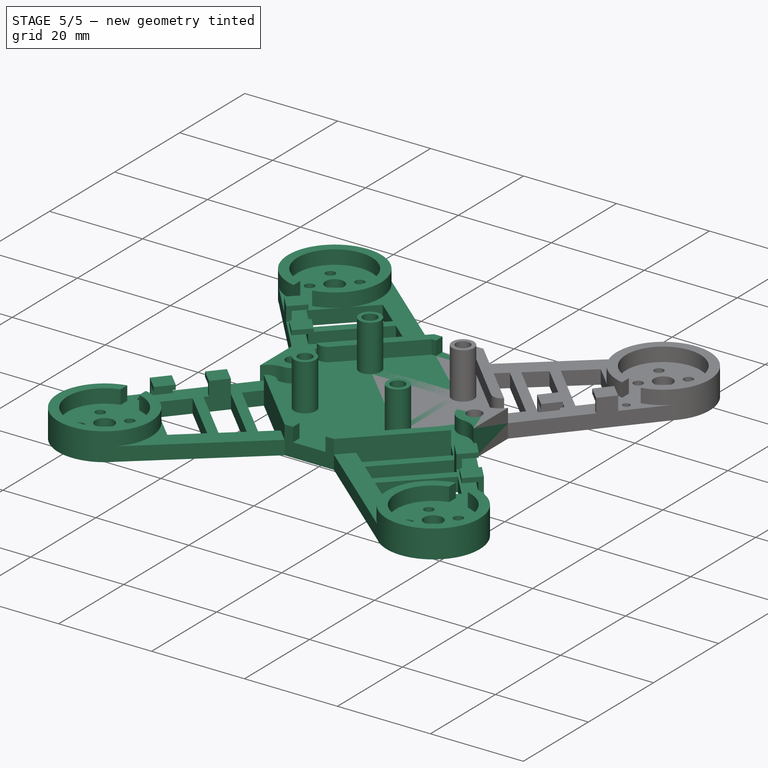
[diagram: stage 5 of 5 — iso view after this stage's code; geometry added in this stage tinted green]
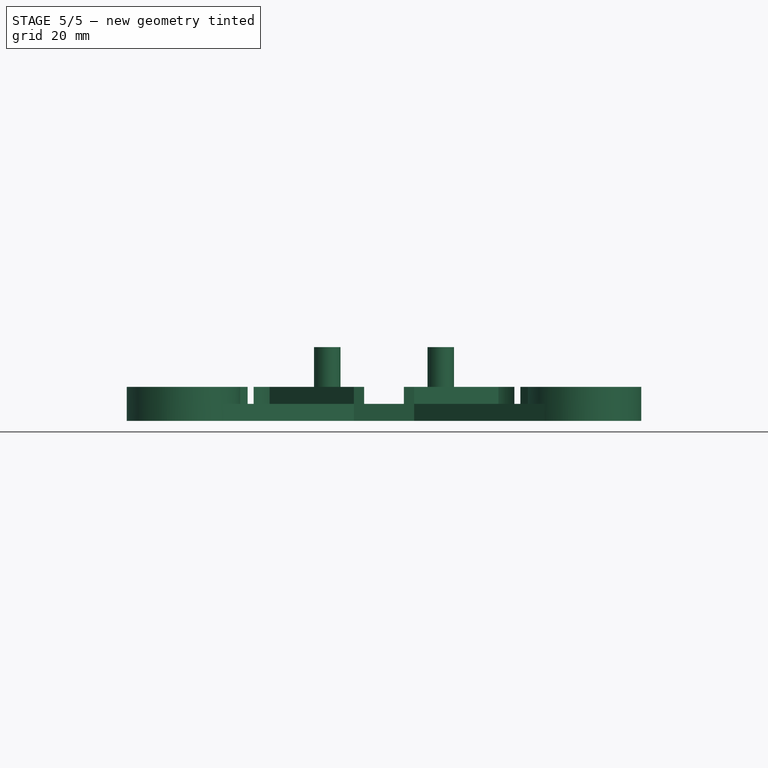
[diagram: stage 5 of 5 — front view after this stage's code; geometry added in this stage tinted green]
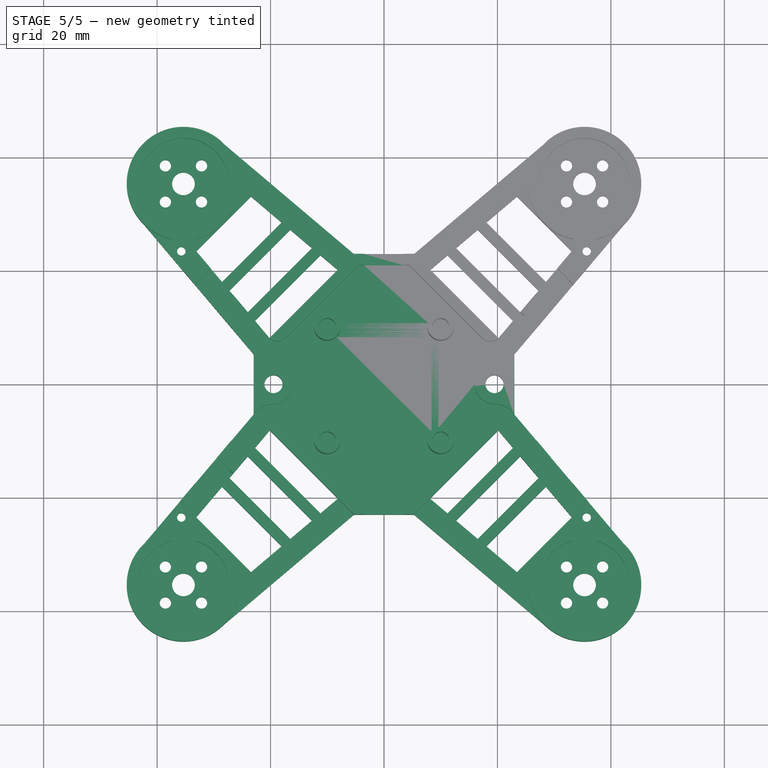
[diagram: stage 5 of 5 — top view after this stage's code; geometry added in this stage tinted green]
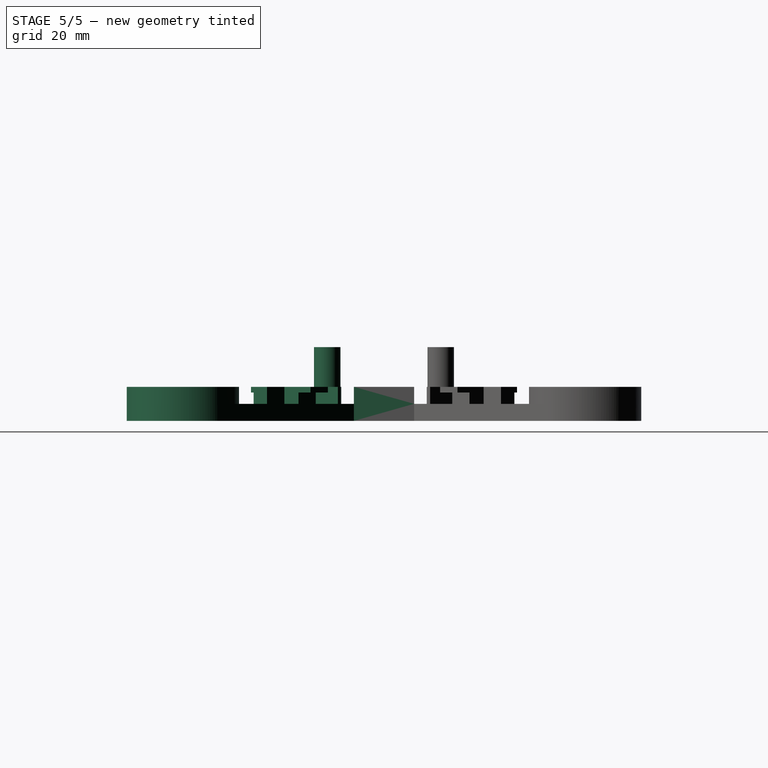
[diagram: stage 5 of 5 — right view after this stage's code; geometry added in this stage tinted green]
FEATURE [Part::Mirroring] Part__Mirroring  label="Pocket008 (Mirror #1)"
  Base = (0,0,0)
  Normal = (0,1,0)
  Source = -> Pocket008
FEATURE [Part::MultiFuse] Fusion
  Shapes = -> [Pocket008,Part__Mirroring]
FEATURE [Part::Mirroring] Part__Mirroring001  label="Fusion (Mirror #2)"
  Base = (0,0,0)
  Normal = (1,0,0)
  Source = -> Fusion
FEATURE [Part::MultiFuse] Fusion001
  Shapes = -> [Fusion,Part__Mirroring001]
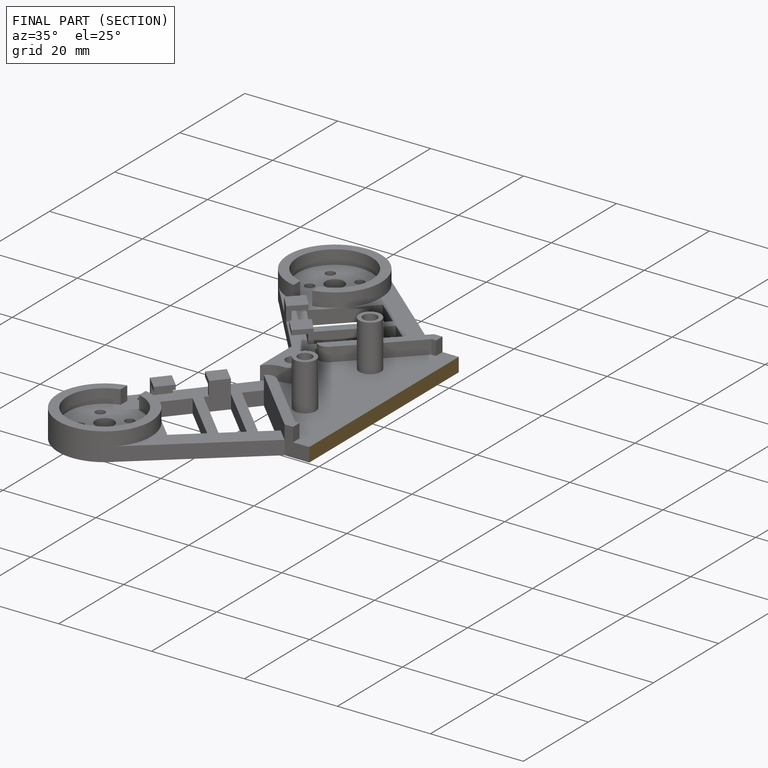
[diagram: finished part — half-section view (interior)]
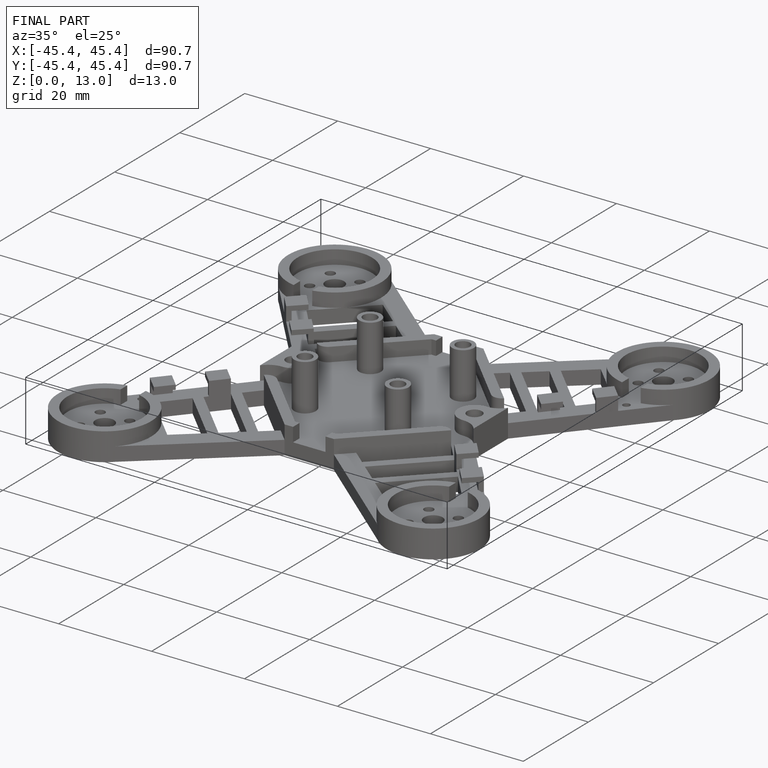
[diagram: finished part — iso view with bounding-box wireframe]
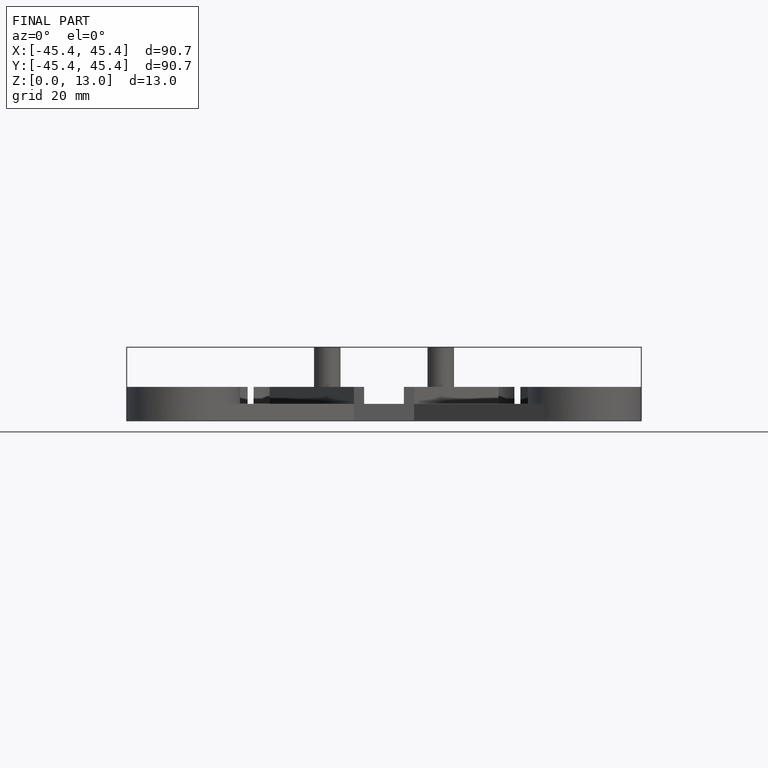
[diagram: finished part — front view with bounding-box wireframe]
